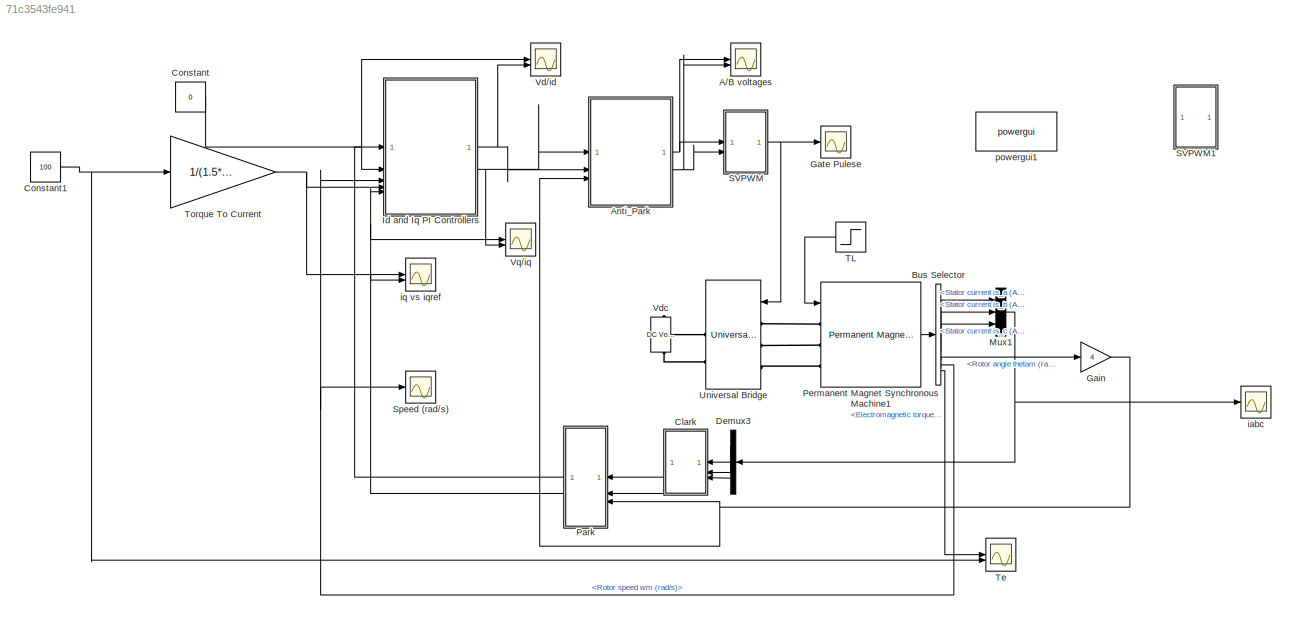
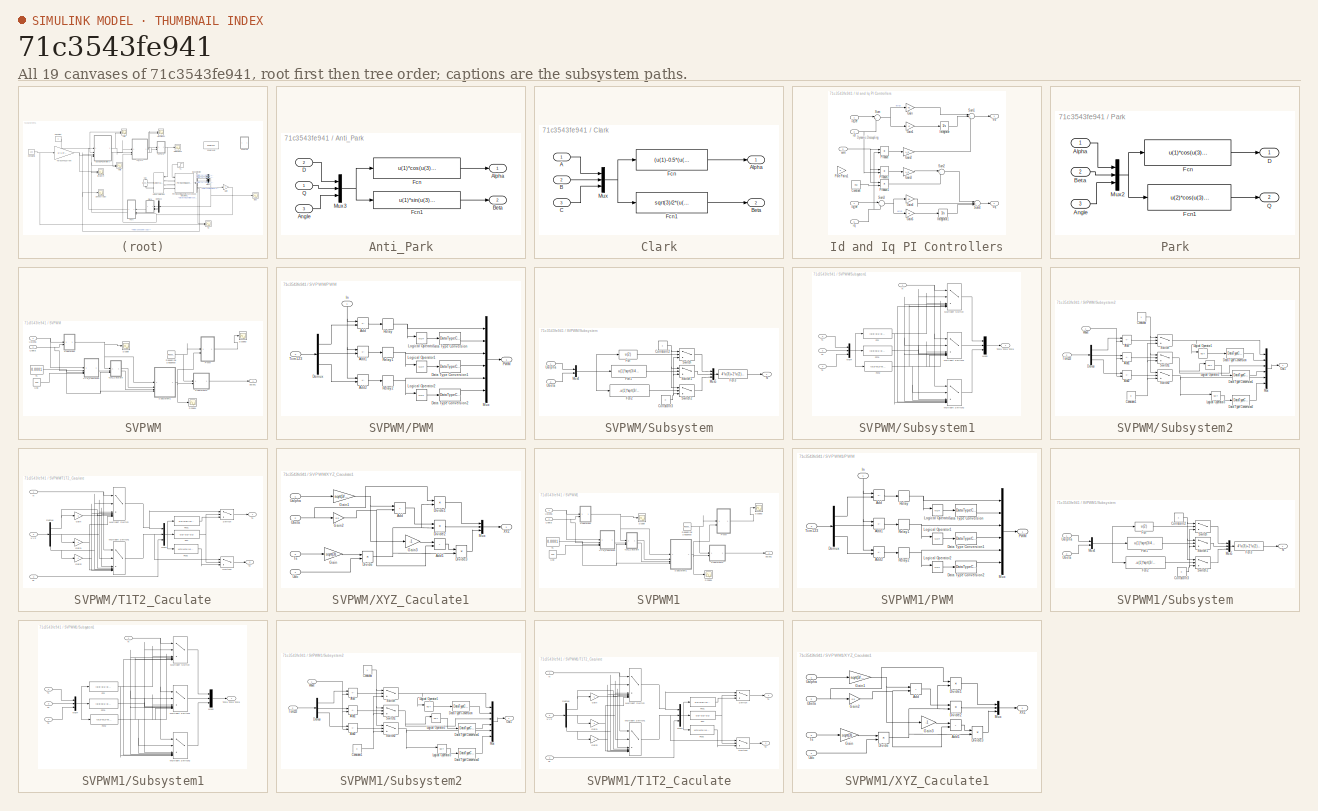
[diagram: thumbnail index - all 19 canvases of the model, root first then tree order]
MODEL slx_71c3543fe941
KIND model
CONFIG AbsTol = auto
CONFIG EnableMultiTasking = on
CONFIG FixedStep = 0.0002
CONFIG InitFcn = Ts = 10e-6;\n\nR = 0.958;\nLd = 5.25e-3;\nLq = 12e-3;\nPn = 4;\nflux = 0.1827;
CONFIG MaxStep = auto
CONFIG MinStep = auto
CONFIG RelTol = 1e-4
CONFIG SampleTimeConstraint = Unconstrained
CONFIG SolverName = FixedStepAuto
CONFIG StartTime = 0.0
CONFIG StopTime = 5
BLOCK [Scope] A//B voltages
  Floating = off
  NumInputPorts = 2
  ScopeSpecificationString = Simulink.scopes.TimeScopeBlockCfg('CurrentConfiguration', extmgr.ConfigurationSet(extmgr.Configuration('Core','General UI',true),extmgr.Configuration('Core','Source UI',true),extmgr.Configuration('Sources','WiredSimulink',true,'DataLoggingVariableName','ScopeData3'),extmgr.Configuration('Visuals','Time Domain',true,'SerializedDisplays',{struct('MinYLimReal','-103.71842','MaxYLimReal','110.31379','...<+1600ch>
BLOCK [SubSystem] Anti_Park
BLOCK [Outport] Anti_Park/Alpha
  VectorParamsAs1DForOutWhenUnconnected = off
BLOCK [Inport] Anti_Park/Angle
  Port = 3
BLOCK [Outport] Anti_Park/Beta
  Port = 2
  VectorParamsAs1DForOutWhenUnconnected = off
BLOCK [Inport] Anti_Park/D
  Port = 2
BLOCK [Fcn] Anti_Park/Fcn
  Expr = u(1)*cos(u(3))-u(2)*sin(u(3))
BLOCK [Fcn] Anti_Park/Fcn1
  Expr = u(1)*sin(u(3))+u(2)*cos(u(3))
BLOCK [Mux] Anti_Park/Mux3
  DisplayOption = bar
  Inputs = 3
BLOCK [Inport] Anti_Park/Q
BLOCK [BusSelector] Bus Selector
  OutputSignals = Stator current is_a (A),Stator current is_b (A),Stator current is_c (A),Rotor speed wm (rad/s),Rotor angle thetam (rad),Electromagnetic torque Te (N*m)
BLOCK [SubSystem] Clark
BLOCK [Inport] Clark/A
BLOCK [Outport] Clark/Alpha
  VectorParamsAs1DForOutWhenUnconnected = off
BLOCK [Inport] Clark/B
  Port = 2
BLOCK [Outport] Clark/Beta
  Port = 2
  VectorParamsAs1DForOutWhenUnconnected = off
BLOCK [Inport] Clark/C
  Port = 3
BLOCK [Fcn] Clark/Fcn
  Expr = (u(1)-0.5*(u(2)+u(3)))*2/3
BLOCK [Fcn] Clark/Fcn1
  Expr = sqrt(3)/2*(u(2)-u(3))*2/3
BLOCK [Mux] Clark/Mux
  DisplayOption = bar
  Inputs = 3
BLOCK [Constant] Constant
  Value = 0
BLOCK [Constant] Constant1
  Value = 100
BLOCK [Demux] Demux3
  NameLocation = top
  Outputs = 3
BLOCK [Gain] Gain
  Gain = 4
BLOCK [Scope] Gate Pulese
  Floating = off
  NumInputPorts = 1
  ScopeSpecificationString = Simulink.scopes.TimeScopeBlockCfg('CurrentConfiguration', extmgr.ConfigurationSet(extmgr.Configuration('Core','General UI',true),extmgr.Configuration('Core','Source UI',true),extmgr.Configuration('Sources','WiredSimulink',true,'DataLoggingVariableName','ScopeData2'),extmgr.Configuration('Visuals','Time Domain',true,'SerializedDisplays',{struct('MinYLimReal','-0.125','MaxYLimReal','1.125','YLabelRe...<+1631ch>
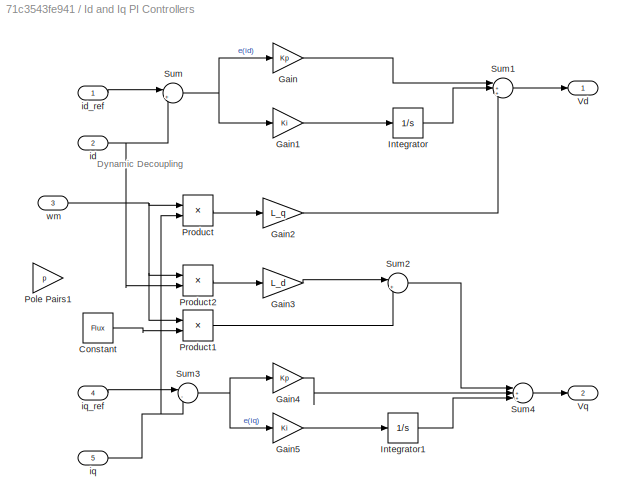
BLOCK [SubSystem] Id and Iq PI Controllers
BLOCK [Constant] Id and Iq PI Controllers/Constant
  Value = Flux
BLOCK [Gain] Id and Iq PI Controllers/Gain
  Gain = Kp
BLOCK [Gain] Id and Iq PI Controllers/Gain1
  Gain = Ki
BLOCK [Gain] Id and Iq PI Controllers/Gain2
  Gain = L_q
BLOCK [Gain] Id and Iq PI Controllers/Gain3
  Gain = L_d
BLOCK [Gain] Id and Iq PI Controllers/Gain4
  Gain = Kp
BLOCK [Gain] Id and Iq PI Controllers/Gain5
  Gain = Ki
BLOCK [Integrator] Id and Iq PI Controllers/Integrator
BLOCK [Integrator] Id and Iq PI Controllers/Integrator1
BLOCK [Gain] Id and Iq PI Controllers/Pole Pairs1
  Gain = p
BLOCK [Product] Id and Iq PI Controllers/Product
BLOCK [Product] Id and Iq PI Controllers/Product1
BLOCK [Product] Id and Iq PI Controllers/Product2
BLOCK [Sum] Id and Iq PI Controllers/Sum
  Inputs = |+-
BLOCK [Sum] Id and Iq PI Controllers/Sum1
  Inputs = |++-
BLOCK [Sum] Id and Iq PI Controllers/Sum2
  Inputs = |++
BLOCK [Sum] Id and Iq PI Controllers/Sum3
  Inputs = |-+
BLOCK [Sum] Id and Iq PI Controllers/Sum4
  Inputs = |+++
BLOCK [Outport] Id and Iq PI Controllers/Vd
BLOCK [Outport] Id and Iq PI Controllers/Vq
  Port = 2
BLOCK [Inport] Id and Iq PI Controllers/id
  Port = 2
BLOCK [Inport] Id and Iq PI Controllers/id_ref
BLOCK [Inport] Id and Iq PI Controllers/iq
  Port = 5
BLOCK [Inport] Id and Iq PI Controllers/iq_ref
  Port = 4
BLOCK [Inport] Id and Iq PI Controllers/wm
  Port = 3
BLOCK [Mux] Mux1
  DisplayOption = bar
  Inputs = 3
BLOCK [SubSystem] Park
BLOCK [Inport] Park/Alpha
BLOCK [Inport] Park/Angle
  Port = 3
BLOCK [Inport] Park/Beta
  Port = 2
BLOCK [Outport] Park/D
  VectorParamsAs1DForOutWhenUnconnected = off
BLOCK [Fcn] Park/Fcn
  Expr = u(1)*cos(u(3))+u(2)*sin(u(3))
BLOCK [Fcn] Park/Fcn1
  Expr = u(2)*cos(u(3))-u(1)*sin(u(3))
BLOCK [Mux] Park/Mux2
  DisplayOption = bar
  Inputs = 3
BLOCK [Outport] Park/Q
  Port = 2
  VectorParamsAs1DForOutWhenUnconnected = off
BLOCK [Reference] Permanent Magnet Synchronous Machine1  REF=spsPermanentMagnetSynchronousMachineLib/Permanent Magnet
Synchronous Machine
  LibrarySourceBlock = sps_lib/Electrical Machines/Permanent Magnet\nSynchronous Machine
  SourceBlock = spsPermanentMagnetSynchronousMachineLib/Permanent Magnet\nSynchronous Machine
  SourceType = Permanent Magnet Synchronous Machine
BLOCK [SubSystem] SVPWM
BLOCK [SubSystem] SVPWM/PWM
BLOCK [Sum] SVPWM/PWM/Add
  IconShape = rectangular
  Inputs = +-
BLOCK [Sum] SVPWM/PWM/Add1
  IconShape = rectangular
  Inputs = +-
BLOCK [Sum] SVPWM/PWM/Add2
  IconShape = rectangular
  Inputs = +-
BLOCK [DataTypeConversion] SVPWM/PWM/Data Type Conversion
  OutDataTypeStr = double
  RndMeth = Floor
  SaturateOnIntegerOverflow = off
BLOCK [DataTypeConversion] SVPWM/PWM/Data Type Conversion1
  OutDataTypeStr = double
  RndMeth = Floor
  SaturateOnIntegerOverflow = off
BLOCK [DataTypeConversion] SVPWM/PWM/Data Type Conversion2
  OutDataTypeStr = double
  RndMeth = Floor
  SaturateOnIntegerOverflow = off
BLOCK [Demux] SVPWM/PWM/Demux
  Outputs = 3
BLOCK [Inport] SVPWM/PWM/In
  NameLocation = right
BLOCK [Logic] SVPWM/PWM/Logical Operator
  AllPortsSameDT = off
  Operator = NOT
  OutDataTypeStr = boolean
BLOCK [Logic] SVPWM/PWM/Logical Operator1
  AllPortsSameDT = off
  Operator = NOT
  OutDataTypeStr = boolean
BLOCK [Logic] SVPWM/PWM/Logical Operator2
  AllPortsSameDT = off
  Operator = NOT
  OutDataTypeStr = boolean
BLOCK [Mux] SVPWM/PWM/Mux
  DisplayOption = bar
  Inputs = 6
BLOCK [Outport] SVPWM/PWM/PWM
  VectorParamsAs1DForOutWhenUnconnected = off
BLOCK [Relay] SVPWM/PWM/Relay
  OffSwitchValue = -eps
BLOCK [Relay] SVPWM/PWM/Relay1
  OffSwitchValue = -eps
BLOCK [Relay] SVPWM/PWM/Relay2
  OffSwitchValue = -eps
BLOCK [Inport] SVPWM/PWM/Tcm123
  Port = 2
BLOCK [Reference] SVPWM/Repeating Sequence  REF=simulink/Sources/Repeating
Sequence
  SourceBlock = simulink/Sources/Repeating\nSequence
  SourceType = Repeating table
BLOCK [Scope] SVPWM/Scope
  Floating = off
  NumInputPorts = 1
  ScopeSpecificationString = Simulink.scopes.TimeScopeBlockCfg('CurrentConfiguration', extmgr.ConfigurationSet(extmgr.Configuration('Core','General UI',true),extmgr.Configuration('Core','Source UI',true),extmgr.Configuration('Sources','WiredSimulink',true,'DataLoggingVariableName','ScopeData2'),extmgr.Configuration('Visuals','Time Domain',true,'SerializedDisplays',{struct('MinYLimReal','0.375','MaxYLimReal','6.625','YLabelRea...<+1472ch>
BLOCK [Scope] SVPWM/Scope1
  Floating = off
  NumInputPorts = 1
  ScopeSpecificationString = Simulink.scopes.TimeScopeBlockCfg('CurrentConfiguration', extmgr.ConfigurationSet(extmgr.Configuration('Core','General UI',true),extmgr.Configuration('Core','Source UI',true),extmgr.Configuration('Sources','WiredSimulink',true,'DataLoggingVariableName','ScopeData4'),extmgr.Configuration('Visuals','Time Domain',true,'SerializedDisplays',{struct('MinYLimReal','-0.000006','MaxYLimReal','0.000056','YL...<+1498ch>
BLOCK [Scope] SVPWM/Scope3
  Floating = off
  NumInputPorts = 1
  ScopeSpecificationString = Simulink.scopes.TimeScopeBlockCfg('CurrentConfiguration', extmgr.ConfigurationSet(extmgr.Configuration('Core','General UI',true),extmgr.Configuration('Core','Source UI',true),extmgr.Configuration('Sources','WiredSimulink',true,'DataLoggingVariableName','ScopeData6'),extmgr.Configuration('Visuals','Time Domain',true,'SerializedDisplays',{struct('MinYLimReal','-0.125','MaxYLimReal','1.125','YLabelRe...<+1550ch>
BLOCK [SubSystem] SVPWM/Subsystem
BLOCK [Constant] SVPWM/Subsystem/Constant2
BLOCK [Constant] SVPWM/Subsystem/Constant3
  Value = 0
BLOCK [Fcn] SVPWM/Subsystem/Fcn
  Expr = u(2)
BLOCK [Fcn] SVPWM/Subsystem/Fcn1
  Expr = u(1)*sqrt(3/4)-0.5*u(2)
BLOCK [Fcn] SVPWM/Subsystem/Fcn2
  Expr = -u(1)*sqrt(3/4)-u(2)*0.5
BLOCK [Fcn] SVPWM/Subsystem/Fcn3
  Expr = 4*u(3)+2*u(2)+u(1)
BLOCK [Mux] SVPWM/Subsystem/Mux4
  DisplayOption = bar
  Inputs = 2
BLOCK [Mux] SVPWM/Subsystem/Mux5
  DisplayOption = bar
  Inputs = 3
BLOCK [Outport] SVPWM/Subsystem/N
  VectorParamsAs1DForOutWhenUnconnected = off
BLOCK [Switch] SVPWM/Subsystem/Switch
  Criteria = u2 > Threshold
  InputSameDT = off
  SaturateOnIntegerOverflow = off
BLOCK [Switch] SVPWM/Subsystem/Switch1
  Criteria = u2 > Threshold
  InputSameDT = off
  SaturateOnIntegerOverflow = off
BLOCK [Switch] SVPWM/Subsystem/Switch2
  Criteria = u2 > Threshold
  InputSameDT = off
  SaturateOnIntegerOverflow = off
BLOCK [Inport] SVPWM/Subsystem/Ualpha
BLOCK [Inport] SVPWM/Subsystem/Ubeta
  Port = 2
BLOCK [SubSystem] SVPWM/Subsystem1
BLOCK [Fcn] SVPWM/Subsystem1/Fcn
  Expr = (u(3)-u(1)-u(2))/4
BLOCK [Fcn] SVPWM/Subsystem1/Fcn1
  Expr = (u(3)+u(1)-u(2))/4
BLOCK [Fcn] SVPWM/Subsystem1/Fcn2
  Expr = (u(3)+u(2)+u(1))/4
BLOCK [MultiPortSwitch] SVPWM/Subsystem1/Multiport Switch
  InputSameDT = off
  Inputs = 6
  SaturateOnIntegerOverflow = off
BLOCK [MultiPortSwitch] SVPWM/Subsystem1/Multiport Switch1
  InputSameDT = off
  Inputs = 6
  SaturateOnIntegerOverflow = off
BLOCK [MultiPortSwitch] SVPWM/Subsystem1/Multiport Switch2
  InputSameDT = off
  Inputs = 6
  SaturateOnIntegerOverflow = off
BLOCK [Mux] SVPWM/Subsystem1/Mux4
  DisplayOption = bar
  Inputs = 3
BLOCK [Mux] SVPWM/Subsystem1/Mux5
  DisplayOption = bar
  Inputs = 3
BLOCK [Inport] SVPWM/Subsystem1/N
BLOCK [Inport] SVPWM/Subsystem1/T1
  Port = 2
BLOCK [Inport] SVPWM/Subsystem1/T2
  Port = 3
BLOCK [Outport] SVPWM/Subsystem1/Tcm1 Tcm2 Tcm3
  VectorParamsAs1DForOutWhenUnconnected = off
BLOCK [Inport] SVPWM/Subsystem1/Ts
  Port = 4
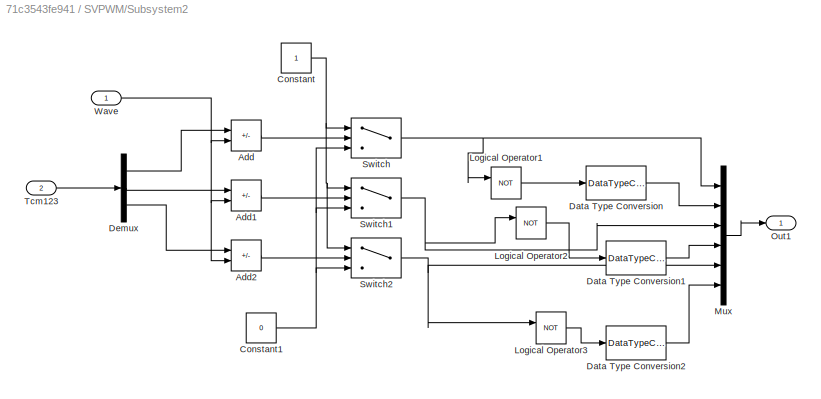
BLOCK [SubSystem] SVPWM/Subsystem2
BLOCK [Sum] SVPWM/Subsystem2/Add
  IconShape = rectangular
  Inputs = -+
BLOCK [Sum] SVPWM/Subsystem2/Add1
  IconShape = rectangular
  Inputs = -+
BLOCK [Sum] SVPWM/Subsystem2/Add2
  IconShape = rectangular
  Inputs = -+
BLOCK [Constant] SVPWM/Subsystem2/Constant
BLOCK [Constant] SVPWM/Subsystem2/Constant1
  Value = 0
BLOCK [DataTypeConversion] SVPWM/Subsystem2/Data Type Conversion
  OutDataTypeStr = double
  RndMeth = Floor
  SaturateOnIntegerOverflow = off
BLOCK [DataTypeConversion] SVPWM/Subsystem2/Data Type Conversion1
  OutDataTypeStr = double
  RndMeth = Floor
  SaturateOnIntegerOverflow = off
BLOCK [DataTypeConversion] SVPWM/Subsystem2/Data Type Conversion2
  OutDataTypeStr = double
  RndMeth = Floor
  SaturateOnIntegerOverflow = off
BLOCK [Demux] SVPWM/Subsystem2/Demux
  Outputs = 3
BLOCK [Logic] SVPWM/Subsystem2/Logical Operator1
  AllPortsSameDT = off
  Operator = NOT
  OutDataTypeStr = boolean
BLOCK [Logic] SVPWM/Subsystem2/Logical Operator2
  AllPortsSameDT = off
  Operator = NOT
  OutDataTypeStr = boolean
BLOCK [Logic] SVPWM/Subsystem2/Logical Operator3
  AllPortsSameDT = off
  Operator = NOT
  OutDataTypeStr = boolean
BLOCK [Mux] SVPWM/Subsystem2/Mux
  DisplayOption = bar
  Inputs = 6
BLOCK [Outport] SVPWM/Subsystem2/Out1
  VectorParamsAs1DForOutWhenUnconnected = off
BLOCK [Switch] SVPWM/Subsystem2/Switch
  Criteria = u2 > Threshold
  InputSameDT = off
  SaturateOnIntegerOverflow = off
BLOCK [Switch] SVPWM/Subsystem2/Switch1
  Criteria = u2 > Threshold
  InputSameDT = off
  SaturateOnIntegerOverflow = off
BLOCK [Switch] SVPWM/Subsystem2/Switch2
  Criteria = u2 > Threshold
  InputSameDT = off
  SaturateOnIntegerOverflow = off
BLOCK [Inport] SVPWM/Subsystem2/Tcm123
  Port = 2
BLOCK [Inport] SVPWM/Subsystem2/Wave
BLOCK [SubSystem] SVPWM/T1T2_Caculate
BLOCK [Demux] SVPWM/T1T2_Caculate/Demux
  Outputs = 3
BLOCK [Fcn] SVPWM/T1T2_Caculate/Fcn
  Expr = u(3)-u(2)-u(1)
BLOCK [Fcn] SVPWM/T1T2_Caculate/Fcn1
  Expr = u(1)*u(3)/(u(1)+u(2))
BLOCK [Fcn] SVPWM/T1T2_Caculate/Fcn2
  Expr = u(2)*u(3)/(u(1)+u(2))
BLOCK [Gain] SVPWM/T1T2_Caculate/Gain
  Gain = -1
BLOCK [Gain] SVPWM/T1T2_Caculate/Gain1
  Gain = -1
BLOCK [Gain] SVPWM/T1T2_Caculate/Gain2
  Gain = -1
BLOCK [MultiPortSwitch] SVPWM/T1T2_Caculate/Multiport Switch
  InputSameDT = off
  Inputs = 6
  SaturateOnIntegerOverflow = off
BLOCK [MultiPortSwitch] SVPWM/T1T2_Caculate/Multiport Switch1
  InputSameDT = off
  Inputs = 6
  SaturateOnIntegerOverflow = off
BLOCK [Mux] SVPWM/T1T2_Caculate/Mux4
  DisplayOption = bar
  Inputs = 3
BLOCK [Inport] SVPWM/T1T2_Caculate/N
BLOCK [Switch] SVPWM/T1T2_Caculate/Switch
  Criteria = u2 > Threshold
  InputSameDT = off
  SaturateOnIntegerOverflow = off
BLOCK [Switch] SVPWM/T1T2_Caculate/Switch1
  Criteria = u2 > Threshold
  InputSameDT = off
  SaturateOnIntegerOverflow = off
BLOCK [Outport] SVPWM/T1T2_Caculate/T1
  VectorParamsAs1DForOutWhenUnconnected = off
BLOCK [Outport] SVPWM/T1T2_Caculate/T2
  Port = 2
  VectorParamsAs1DForOutWhenUnconnected = off
BLOCK [Inport] SVPWM/T1T2_Caculate/Ts
  Port = 3
BLOCK [Inport] SVPWM/T1T2_Caculate/XYZ
  Port = 2
BLOCK [Constant] SVPWM/Ts
  Value = 0.0001
BLOCK [Inport] SVPWM/Ualpha
BLOCK [Inport] SVPWM/Ubeta
  Port = 2
BLOCK [Constant] SVPWM/Udc
  Value = 600
BLOCK [SubSystem] SVPWM/XYZ_Caculate1
BLOCK [Sum] SVPWM/XYZ_Caculate1/Add
  IconShape = rectangular
BLOCK [Sum] SVPWM/XYZ_Caculate1/Add1
  IconShape = rectangular
BLOCK [Product] SVPWM/XYZ_Caculate1/Divide
  Inputs = */
BLOCK [Product] SVPWM/XYZ_Caculate1/Divide1
  Inputs = **
BLOCK [Product] SVPWM/XYZ_Caculate1/Divide2
  Inputs = **
BLOCK [Product] SVPWM/XYZ_Caculate1/Divide3
  Inputs = **
BLOCK [Gain] SVPWM/XYZ_Caculate1/Gain
  Gain = sqrt(3)
BLOCK [Gain] SVPWM/XYZ_Caculate1/Gain1
  Gain = sqrt(3/4)
BLOCK [Gain] SVPWM/XYZ_Caculate1/Gain2
  Gain = 0.5
BLOCK [Gain] SVPWM/XYZ_Caculate1/Gain3
  Gain = -1
BLOCK [Mux] SVPWM/XYZ_Caculate1/Mux
  DisplayOption = bar
  Inputs = 3
BLOCK [Inport] SVPWM/XYZ_Caculate1/Ts
  Port = 3
BLOCK [Inport] SVPWM/XYZ_Caculate1/Ualpha
BLOCK [Inport] SVPWM/XYZ_Caculate1/Ubeta
  Port = 2
BLOCK [Inport] SVPWM/XYZ_Caculate1/Udc
  Port = 4
BLOCK [Outport] SVPWM/XYZ_Caculate1/XYZ 
  VectorParamsAs1DForOutWhenUnconnected = off
BLOCK [Outport] SVPWM/pulse1
  VectorParamsAs1DForOutWhenUnconnected = off
BLOCK [SubSystem] SVPWM1
  Commented = on
BLOCK [SubSystem] SVPWM1/PWM
BLOCK [Sum] SVPWM1/PWM/Add
  IconShape = rectangular
  Inputs = +-
BLOCK [Sum] SVPWM1/PWM/Add1
  IconShape = rectangular
  Inputs = +-
BLOCK [Sum] SVPWM1/PWM/Add2
  IconShape = rectangular
  Inputs = +-
BLOCK [DataTypeConversion] SVPWM1/PWM/Data Type Conversion
  OutDataTypeStr = double
  RndMeth = Floor
  SaturateOnIntegerOverflow = off
BLOCK [DataTypeConversion] SVPWM1/PWM/Data Type Conversion1
  OutDataTypeStr = double
  RndMeth = Floor
  SaturateOnIntegerOverflow = off
BLOCK [DataTypeConversion] SVPWM1/PWM/Data Type Conversion2
  OutDataTypeStr = double
  RndMeth = Floor
  SaturateOnIntegerOverflow = off
BLOCK [Demux] SVPWM1/PWM/Demux
  Outputs = 3
BLOCK [Inport] SVPWM1/PWM/In
  NameLocation = right
BLOCK [Logic] SVPWM1/PWM/Logical Operator
  AllPortsSameDT = off
  Operator = NOT
  OutDataTypeStr = boolean
BLOCK [Logic] SVPWM1/PWM/Logical Operator1
  AllPortsSameDT = off
  Operator = NOT
  OutDataTypeStr = boolean
BLOCK [Logic] SVPWM1/PWM/Logical Operator2
  AllPortsSameDT = off
  Operator = NOT
  OutDataTypeStr = boolean
BLOCK [Mux] SVPWM1/PWM/Mux
  DisplayOption = bar
  Inputs = 6
BLOCK [Outport] SVPWM1/PWM/PWM
  VectorParamsAs1DForOutWhenUnconnected = off
BLOCK [Relay] SVPWM1/PWM/Relay
  OffSwitchValue = -eps
BLOCK [Relay] SVPWM1/PWM/Relay1
  OffSwitchValue = -eps
BLOCK [Relay] SVPWM1/PWM/Relay2
  OffSwitchValue = -eps
BLOCK [Inport] SVPWM1/PWM/Tcm123
  Port = 2
BLOCK [Reference] SVPWM1/Repeating Sequence  REF=simulink/Sources/Repeating
Sequence
  SourceBlock = simulink/Sources/Repeating\nSequence
  SourceType = Repeating table
BLOCK [Scope] SVPWM1/Scope
  Floating = off
  NumInputPorts = 1
  ScopeSpecificationString = Simulink.scopes.TimeScopeBlockCfg('CurrentConfiguration', extmgr.ConfigurationSet(extmgr.Configuration('Core','General UI',true),extmgr.Configuration('Core','Source UI',true),extmgr.Configuration('Sources','WiredSimulink',true,'DataLoggingVariableName','ScopeData2'),extmgr.Configuration('Visuals','Time Domain',true,'SerializedDisplays',{struct('MinYLimReal','0.375','MaxYLimReal','6.625','YLabelRea...<+1472ch>
BLOCK [Scope] SVPWM1/Scope1
  Floating = off
  NumInputPorts = 1
  ScopeSpecificationString = Simulink.scopes.TimeScopeBlockCfg('CurrentConfiguration', extmgr.ConfigurationSet(extmgr.Configuration('Core','General UI',true),extmgr.Configuration('Core','Source UI',true),extmgr.Configuration('Sources','WiredSimulink',true,'DataLoggingVariableName','ScopeData4'),extmgr.Configuration('Visuals','Time Domain',true,'SerializedDisplays',{struct('MinYLimReal','-0.000006','MaxYLimReal','0.000056','YL...<+1498ch>
BLOCK [Scope] SVPWM1/Scope3
  Floating = off
  NumInputPorts = 1
  ScopeSpecificationString = Simulink.scopes.TimeScopeBlockCfg('CurrentConfiguration', extmgr.ConfigurationSet(extmgr.Configuration('Core','General UI',true),extmgr.Configuration('Core','Source UI',true),extmgr.Configuration('Sources','WiredSimulink',true,'DataLoggingVariableName','ScopeData6'),extmgr.Configuration('Visuals','Time Domain',true,'SerializedDisplays',{struct('MinYLimReal','-0.125','MaxYLimReal','1.125','YLabelRe...<+1550ch>
BLOCK [SubSystem] SVPWM1/Subsystem
BLOCK [Constant] SVPWM1/Subsystem/Constant2
BLOCK [Constant] SVPWM1/Subsystem/Constant3
  Value = 0
BLOCK [Fcn] SVPWM1/Subsystem/Fcn
  Expr = u(2)
BLOCK [Fcn] SVPWM1/Subsystem/Fcn1
  Expr = u(1)*sqrt(3/4)-0.5*u(2)
BLOCK [Fcn] SVPWM1/Subsystem/Fcn2
  Expr = -u(1)*sqrt(3/4)-u(2)*0.5
BLOCK [Fcn] SVPWM1/Subsystem/Fcn3
  Expr = 4*u(3)+2*u(2)+u(1)
BLOCK [Mux] SVPWM1/Subsystem/Mux4
  DisplayOption = bar
  Inputs = 2
BLOCK [Mux] SVPWM1/Subsystem/Mux5
  DisplayOption = bar
  Inputs = 3
BLOCK [Outport] SVPWM1/Subsystem/N
  VectorParamsAs1DForOutWhenUnconnected = off
BLOCK [Switch] SVPWM1/Subsystem/Switch
  Criteria = u2 > Threshold
  InputSameDT = off
  SaturateOnIntegerOverflow = off
BLOCK [Switch] SVPWM1/Subsystem/Switch1
  Criteria = u2 > Threshold
  InputSameDT = off
  SaturateOnIntegerOverflow = off
BLOCK [Switch] SVPWM1/Subsystem/Switch2
  Criteria = u2 > Threshold
  InputSameDT = off
  SaturateOnIntegerOverflow = off
BLOCK [Inport] SVPWM1/Subsystem/Ualpha
BLOCK [Inport] SVPWM1/Subsystem/Ubeta
  Port = 2
BLOCK [SubSystem] SVPWM1/Subsystem1
BLOCK [Fcn] SVPWM1/Subsystem1/Fcn
  Expr = (u(3)-u(1)-u(2))/4
BLOCK [Fcn] SVPWM1/Subsystem1/Fcn1
  Expr = (u(3)+u(1)-u(2))/4
BLOCK [Fcn] SVPWM1/Subsystem1/Fcn2
  Expr = (u(3)+u(2)+u(1))/4
BLOCK [MultiPortSwitch] SVPWM1/Subsystem1/Multiport Switch
  InputSameDT = off
  Inputs = 6
  SaturateOnIntegerOverflow = off
BLOCK [MultiPortSwitch] SVPWM1/Subsystem1/Multiport Switch1
  InputSameDT = off
  Inputs = 6
  SaturateOnIntegerOverflow = off
BLOCK [MultiPortSwitch] SVPWM1/Subsystem1/Multiport Switch2
  InputSameDT = off
  Inputs = 6
  SaturateOnIntegerOverflow = off
BLOCK [Mux] SVPWM1/Subsystem1/Mux4
  DisplayOption = bar
  Inputs = 3
BLOCK [Mux] SVPWM1/Subsystem1/Mux5
  DisplayOption = bar
  Inputs = 3
BLOCK [Inport] SVPWM1/Subsystem1/N
BLOCK [Inport] SVPWM1/Subsystem1/T1
  Port = 2
BLOCK [Inport] SVPWM1/Subsystem1/T2
  Port = 3
BLOCK [Outport] SVPWM1/Subsystem1/Tcm1 Tcm2 Tcm3
  VectorParamsAs1DForOutWhenUnconnected = off
BLOCK [Inport] SVPWM1/Subsystem1/Ts
  Port = 4
BLOCK [SubSystem] SVPWM1/Subsystem2
BLOCK [Sum] SVPWM1/Subsystem2/Add
  IconShape = rectangular
  Inputs = -+
BLOCK [Sum] SVPWM1/Subsystem2/Add1
  IconShape = rectangular
  Inputs = -+
BLOCK [Sum] SVPWM1/Subsystem2/Add2
  IconShape = rectangular
  Inputs = -+
BLOCK [Constant] SVPWM1/Subsystem2/Constant
BLOCK [Constant] SVPWM1/Subsystem2/Constant1
  Value = 0
BLOCK [DataTypeConversion] SVPWM1/Subsystem2/Data Type Conversion
  OutDataTypeStr = double
  RndMeth = Floor
  SaturateOnIntegerOverflow = off
BLOCK [DataTypeConversion] SVPWM1/Subsystem2/Data Type Conversion1
  OutDataTypeStr = double
  RndMeth = Floor
  SaturateOnIntegerOverflow = off
BLOCK [DataTypeConversion] SVPWM1/Subsystem2/Data Type Conversion2
  OutDataTypeStr = double
  RndMeth = Floor
  SaturateOnIntegerOverflow = off
BLOCK [Demux] SVPWM1/Subsystem2/Demux
  Outputs = 3
BLOCK [Logic] SVPWM1/Subsystem2/Logical Operator1
  AllPortsSameDT = off
  Operator = NOT
  OutDataTypeStr = boolean
BLOCK [Logic] SVPWM1/Subsystem2/Logical Operator2
  AllPortsSameDT = off
  Operator = NOT
  OutDataTypeStr = boolean
BLOCK [Logic] SVPWM1/Subsystem2/Logical Operator3
  AllPortsSameDT = off
  Operator = NOT
  OutDataTypeStr = boolean
BLOCK [Mux] SVPWM1/Subsystem2/Mux
  DisplayOption = bar
  Inputs = 6
BLOCK [Outport] SVPWM1/Subsystem2/Out1
  VectorParamsAs1DForOutWhenUnconnected = off
BLOCK [Switch] SVPWM1/Subsystem2/Switch
  Criteria = u2 > Threshold
  InputSameDT = off
  SaturateOnIntegerOverflow = off
BLOCK [Switch] SVPWM1/Subsystem2/Switch1
  Criteria = u2 > Threshold
  InputSameDT = off
  SaturateOnIntegerOverflow = off
BLOCK [Switch] SVPWM1/Subsystem2/Switch2
  Criteria = u2 > Threshold
  InputSameDT = off
  SaturateOnIntegerOverflow = off
BLOCK [Inport] SVPWM1/Subsystem2/Tcm123
  Port = 2
BLOCK [Inport] SVPWM1/Subsystem2/Wave
BLOCK [SubSystem] SVPWM1/T1T2_Caculate
BLOCK [Demux] SVPWM1/T1T2_Caculate/Demux
  Outputs = 3
BLOCK [Fcn] SVPWM1/T1T2_Caculate/Fcn
  Expr = u(3)-u(2)-u(1)
BLOCK [Fcn] SVPWM1/T1T2_Caculate/Fcn1
  Expr = u(1)*u(3)/(u(1)+u(2))
BLOCK [Fcn] SVPWM1/T1T2_Caculate/Fcn2
  Expr = u(2)*u(3)/(u(1)+u(2))
BLOCK [Gain] SVPWM1/T1T2_Caculate/Gain
  Gain = -1
BLOCK [Gain] SVPWM1/T1T2_Caculate/Gain1
  Gain = -1
BLOCK [Gain] SVPWM1/T1T2_Caculate/Gain2
  Gain = -1
BLOCK [MultiPortSwitch] SVPWM1/T1T2_Caculate/Multiport Switch
  InputSameDT = off
  Inputs = 6
  SaturateOnIntegerOverflow = off
BLOCK [MultiPortSwitch] SVPWM1/T1T2_Caculate/Multiport Switch1
  InputSameDT = off
  Inputs = 6
  SaturateOnIntegerOverflow = off
BLOCK [Mux] SVPWM1/T1T2_Caculate/Mux4
  DisplayOption = bar
  Inputs = 3
BLOCK [Inport] SVPWM1/T1T2_Caculate/N
BLOCK [Switch] SVPWM1/T1T2_Caculate/Switch
  Criteria = u2 > Threshold
  InputSameDT = off
  SaturateOnIntegerOverflow = off
BLOCK [Switch] SVPWM1/T1T2_Caculate/Switch1
  Criteria = u2 > Threshold
  InputSameDT = off
  SaturateOnIntegerOverflow = off
BLOCK [Outport] SVPWM1/T1T2_Caculate/T1
  VectorParamsAs1DForOutWhenUnconnected = off
BLOCK [Outport] SVPWM1/T1T2_Caculate/T2
  Port = 2
  VectorParamsAs1DForOutWhenUnconnected = off
BLOCK [Inport] SVPWM1/T1T2_Caculate/Ts
  Port = 3
BLOCK [Inport] SVPWM1/T1T2_Caculate/XYZ
  Port = 2
BLOCK [Constant] SVPWM1/Ts
  Value = 0.0001
BLOCK [Inport] SVPWM1/Ualpha
BLOCK [Inport] SVPWM1/Ubeta
  Port = 2
BLOCK [Constant] SVPWM1/Udc
  Value = 600
BLOCK [SubSystem] SVPWM1/XYZ_Caculate1
BLOCK [Sum] SVPWM1/XYZ_Caculate1/Add
  IconShape = rectangular
BLOCK [Sum] SVPWM1/XYZ_Caculate1/Add1
  IconShape = rectangular
BLOCK [Product] SVPWM1/XYZ_Caculate1/Divide
  Inputs = */
BLOCK [Product] SVPWM1/XYZ_Caculate1/Divide1
  Inputs = **
BLOCK [Product] SVPWM1/XYZ_Caculate1/Divide2
  Inputs = **
BLOCK [Product] SVPWM1/XYZ_Caculate1/Divide3
  Inputs = **
BLOCK [Gain] SVPWM1/XYZ_Caculate1/Gain
  Gain = sqrt(3)
BLOCK [Gain] SVPWM1/XYZ_Caculate1/Gain1
  Gain = sqrt(3/4)
BLOCK [Gain] SVPWM1/XYZ_Caculate1/Gain2
  Gain = 0.5
BLOCK [Gain] SVPWM1/XYZ_Caculate1/Gain3
  Gain = -1
BLOCK [Mux] SVPWM1/XYZ_Caculate1/Mux
  DisplayOption = bar
  Inputs = 3
BLOCK [Inport] SVPWM1/XYZ_Caculate1/Ts
  Port = 3
BLOCK [Inport] SVPWM1/XYZ_Caculate1/Ualpha
BLOCK [Inport] SVPWM1/XYZ_Caculate1/Ubeta
  Port = 2
BLOCK [Inport] SVPWM1/XYZ_Caculate1/Udc
  Port = 4
BLOCK [Outport] SVPWM1/XYZ_Caculate1/XYZ 
  VectorParamsAs1DForOutWhenUnconnected = off
BLOCK [Outport] SVPWM1/pulse1
  VectorParamsAs1DForOutWhenUnconnected = off
BLOCK [Scope] Speed (rad//s)
  Floating = off
  NumInputPorts = 1
  ScopeSpecificationString = Simulink.scopes.TimeScopeBlockCfg('CurrentConfiguration', extmgr.ConfigurationSet(extmgr.Configuration('Core','General UI',true),extmgr.Configuration('Core','Source UI',true),extmgr.Configuration('Sources','WiredSimulink',true,'DataLoggingVariableName','ScopeData1'),extmgr.Configuration('Visuals','Time Domain',true,'SerializedDisplays',{struct('MinYLimReal','-125.00000','MaxYLimReal','1125.00000',...<+1618ch>
BLOCK [Step] TL
  After = 10
  SampleTime = 0
BLOCK [Scope] Te
  Floating = off
  NameLocation = top
  NumInputPorts = 2
  ScopeSpecificationString = Simulink.scopes.TimeScopeBlockCfg('CurrentConfiguration', extmgr.ConfigurationSet(extmgr.Configuration('Core','General UI',true),extmgr.Configuration('Core','Source UI',true),extmgr.Configuration('Sources','WiredSimulink',true,'DataLogging',true,'DataLoggingVariableName','Te','DataLoggingSaveFormat','StructureWithTime','DataLoggingDecimation','1','DataLoggingDecimateData',true),extmgr.Configuratio...<+1933ch>
BLOCK [Gain] Torque To Current
  Gain = 1/(1.5*p*Flux)
BLOCK [Reference] Universal Bridge  REF=spsUniversalBridgeLib/Universal Bridge
  LibrarySourceBlock = sps_lib/Power Electronics/Universal Bridge
  SourceBlock = spsUniversalBridgeLib/Universal Bridge
  SourceType = Universal Bridge
BLOCK [Scope] Vd//id
  Floating = off
  NumInputPorts = 2
  ScopeSpecificationString = Simulink.scopes.TimeScopeBlockCfg('CurrentConfiguration', extmgr.ConfigurationSet(extmgr.Configuration('Core','General UI',true),extmgr.Configuration('Core','Source UI',true),extmgr.Configuration('Sources','WiredSimulink',true,'DataLoggingVariableName','ScopeData1'),extmgr.Configuration('Visuals','Time Domain',true,'SerializedDisplays',{struct('MinYLimReal','-1034.66885','MaxYLimReal','1393.37608'...<+1547ch>
BLOCK [Reference] Vdc  REF=spsDCVoltageSourceLib/DC Voltage Source
  LibrarySourceBlock = sps_lib/Sources/DC Voltage Source
  NameLocation = right
  SourceBlock = spsDCVoltageSourceLib/DC Voltage Source
  SourceType = DC Voltage Source
BLOCK [Scope] Vq//iq
  Floating = off
  NumInputPorts = 2
  ScopeSpecificationString = Simulink.scopes.TimeScopeBlockCfg('CurrentConfiguration', extmgr.ConfigurationSet(extmgr.Configuration('Core','General UI',true),extmgr.Configuration('Core','Source UI',true),extmgr.Configuration('Sources','WiredSimulink',true,'DataLoggingVariableName','ScopeData2'),extmgr.Configuration('Visuals','Time Domain',true,'SerializedDisplays',{struct('MinYLimReal','-1337.30962','MaxYLimReal','522.46084',...<+1558ch>
BLOCK [Scope] iabc
  Floating = off
  NumInputPorts = 1
  ScopeSpecificationString = Simulink.scopes.TimeScopeBlockCfg('CurrentConfiguration', extmgr.ConfigurationSet(extmgr.Configuration('Core','General UI',true),extmgr.Configuration('Core','Source UI',true),extmgr.Configuration('Sources','WiredSimulink',true,'DataLogging',true,'DataLoggingVariableName','Iabc','DataLoggingSaveFormat','StructureWithTime','DataLoggingDecimation','1','DataLoggingDecimateData',true),extmgr.Configurat...<+2341ch>
BLOCK [Scope] iq vs iqref
  Floating = off
  NumInputPorts = 2
  ScopeSpecificationString = Simulink.scopes.TimeScopeBlockCfg('CurrentConfiguration', extmgr.ConfigurationSet(extmgr.Configuration('Core','General UI',true),extmgr.Configuration('Core','Source UI',true),extmgr.Configuration('Sources','WiredSimulink',true,'DataLoggingVariableName','ScopeData1'),extmgr.Configuration('Visuals','Time Domain',true,'SerializedDisplays',{struct('MinYLimReal','-150.57004','MaxYLimReal','180.37879','...<+1582ch>
BLOCK [Reference] powergui1  REF=sps_lib/powergui
  LibrarySourceBlock = sps_lib/powergui
  Priority = 1
  SourceBlock = sps_lib/powergui
  SourceType = PSB option menu block
ANNOTATION Id and Iq PI Controllers: Dynamic Decoupling
LINE Anti_Park/Angle:1 -> Anti_Park/Mux3:3
LINE Anti_Park/D:1 -> Anti_Park/Mux3:1
LINE Anti_Park/Fcn1:1 -> Anti_Park/Beta:1
LINE Anti_Park/Fcn:1 -> Anti_Park/Alpha:1
NET Anti_Park/Mux3:1 -> Anti_Park/Fcn1:1, Anti_Park/Fcn:1
LINE Anti_Park/Q:1 -> Anti_Park/Mux3:2
NET Anti_Park:1 -> A//B voltages:1, SVPWM:1
NET Anti_Park:2 -> A//B voltages:2, SVPWM:2
LINE Bus Selector:1 -> Mux1:1
LINE Bus Selector:2 -> Mux1:2
LINE Bus Selector:3 -> Mux1:3
NET Bus Selector:4 -> Id and Iq PI Controllers:3, Speed (rad//s):1
LINE Bus Selector:5 -> Gain:1
LINE Bus Selector:6 -> Te:1
LINE Clark/A:1 -> Clark/Mux:1
LINE Clark/B:1 -> Clark/Mux:2
LINE Clark/C:1 -> Clark/Mux:3
LINE Clark/Fcn1:1 -> Clark/Beta:1
LINE Clark/Fcn:1 -> Clark/Alpha:1
NET Clark/Mux:1 -> Clark/Fcn1:1, Clark/Fcn:1
LINE Clark:1 -> Park:1
LINE Clark:2 -> Park:2
NET Constant1:1 -> Te:2, Torque To Current:1
LINE Constant:1 -> Id and Iq PI Controllers:1
LINE Demux3:1 -> Clark:1
LINE Demux3:2 -> Clark:2
LINE Demux3:3 -> Clark:3
NET Gain:1 -> Anti_Park:3, Park:3
LINE Id and Iq PI Controllers/Constant:1 -> Id and Iq PI Controllers/Product1:2
LINE Id and Iq PI Controllers/Gain1:1 -> Id and Iq PI Controllers/Integrator:1
LINE Id and Iq PI Controllers/Gain2:1 -> Id and Iq PI Controllers/Sum1:3
LINE Id and Iq PI Controllers/Gain3:1 -> Id and Iq PI Controllers/Sum2:1
LINE Id and Iq PI Controllers/Gain4:1 -> Id and Iq PI Controllers/Sum4:2
LINE Id and Iq PI Controllers/Gain5:1 -> Id and Iq PI Controllers/Integrator1:1
LINE Id and Iq PI Controllers/Gain:1 -> Id and Iq PI Controllers/Sum1:1
LINE Id and Iq PI Controllers/Integrator1:1 -> Id and Iq PI Controllers/Sum4:3
LINE Id and Iq PI Controllers/Integrator:1 -> Id and Iq PI Controllers/Sum1:2
LINE Id and Iq PI Controllers/Product1:1 -> Id and Iq PI Controllers/Sum2:2
LINE Id and Iq PI Controllers/Product2:1 -> Id and Iq PI Controllers/Gain3:1
LINE Id and Iq PI Controllers/Product:1 -> Id and Iq PI Controllers/Gain2:1
LINE Id and Iq PI Controllers/Sum1:1 -> Id and Iq PI Controllers/Vd:1
LINE Id and Iq PI Controllers/Sum2:1 -> Id and Iq PI Controllers/Sum4:1
NET Id and Iq PI Controllers/Sum3:1 -> Id and Iq PI Controllers/Gain4:1, Id and Iq PI Controllers/Gain5:1
LINE Id and Iq PI Controllers/Sum4:1 -> Id and Iq PI Controllers/Vq:1
NET Id and Iq PI Controllers/Sum:1 -> Id and Iq PI Controllers/Gain1:1, Id and Iq PI Controllers/Gain:1
NET Id and Iq PI Controllers/id:1 -> Id and Iq PI Controllers/Product2:2, Id and Iq PI Controllers/Sum:2
LINE Id and Iq PI Controllers/id_ref:1 -> Id and Iq PI Controllers/Sum:1
NET Id and Iq PI Controllers/iq:1 -> Id and Iq PI Controllers/Product:2, Id and Iq PI Controllers/Sum3:2
LINE Id and Iq PI Controllers/iq_ref:1 -> Id and Iq PI Controllers/Sum3:1
NET Id and Iq PI Controllers/wm:1 -> Id and Iq PI Controllers/Product1:1, Id and Iq PI Controllers/Product2:1, Id and Iq PI Controllers/Product:1
NET Id and Iq PI Controllers:1 -> Anti_Park:2, Vd//id:2
NET Id and Iq PI Controllers:2 -> Anti_Park:1, Vq//iq:2
NET Mux1:1 -> Demux3:1, iabc:1
LINE Park/Alpha:1 -> Park/Mux2:1
LINE Park/Angle:1 -> Park/Mux2:3
LINE Park/Beta:1 -> Park/Mux2:2
LINE Park/Fcn1:1 -> Park/Q:1
LINE Park/Fcn:1 -> Park/D:1
NET Park/Mux2:1 -> Park/Fcn1:1, Park/Fcn:1
NET Park:1 -> Id and Iq PI Controllers:2, Vd//id:1
NET Park:2 -> Id and Iq PI Controllers:5, Vq//iq:1, iq vs iqref:2
LINE Permanent Magnet Synchronous Machine1:1 -> Bus Selector:1
LINE SVPWM/PWM/Add1:1 -> SVPWM/PWM/Relay1:1
LINE SVPWM/PWM/Add2:1 -> SVPWM/PWM/Relay2:1
LINE SVPWM/PWM/Add:1 -> SVPWM/PWM/Relay:1
LINE SVPWM/PWM/Data Type Conversion1:1 -> SVPWM/PWM/Mux:4
LINE SVPWM/PWM/Data Type Conversion2:1 -> SVPWM/PWM/Mux:6
LINE SVPWM/PWM/Data Type Conversion:1 -> SVPWM/PWM/Mux:2
LINE SVPWM/PWM/Demux:1 -> SVPWM/PWM/Add:2
LINE SVPWM/PWM/Demux:2 -> SVPWM/PWM/Add1:2
LINE SVPWM/PWM/Demux:3 -> SVPWM/PWM/Add2:2
NET SVPWM/PWM/In:1 -> SVPWM/PWM/Add1:1, SVPWM/PWM/Add2:1, SVPWM/PWM/Add:1
LINE SVPWM/PWM/Logical Operator1:1 -> SVPWM/PWM/Data Type Conversion1:1
LINE SVPWM/PWM/Logical Operator2:1 -> SVPWM/PWM/Data Type Conversion2:1
LINE SVPWM/PWM/Logical Operator:1 -> SVPWM/PWM/Data Type Conversion:1
LINE SVPWM/PWM/Mux:1 -> SVPWM/PWM/PWM:1
NET SVPWM/PWM/Relay1:1 -> SVPWM/PWM/Logical Operator1:1, SVPWM/PWM/Mux:3
NET SVPWM/PWM/Relay2:1 -> SVPWM/PWM/Logical Operator2:1, SVPWM/PWM/Mux:5
NET SVPWM/PWM/Relay:1 -> SVPWM/PWM/Logical Operator:1, SVPWM/PWM/Mux:1
LINE SVPWM/PWM/Tcm123:1 -> SVPWM/PWM/Demux:1
LINE SVPWM/PWM:1 -> SVPWM/Scope3:1
NET SVPWM/Repeating Sequence:1 -> SVPWM/PWM:1, SVPWM/Subsystem2:1
NET SVPWM/Subsystem/Constant2:1 -> SVPWM/Subsystem/Switch1:1, SVPWM/Subsystem/Switch2:1, SVPWM/Subsystem/Switch:1
NET SVPWM/Subsystem/Constant3:1 -> SVPWM/Subsystem/Switch1:3, SVPWM/Subsystem/Switch2:3, SVPWM/Subsystem/Switch:3
LINE SVPWM/Subsystem/Fcn1:1 -> SVPWM/Subsystem/Switch1:2
LINE SVPWM/Subsystem/Fcn2:1 -> SVPWM/Subsystem/Switch2:2
LINE SVPWM/Subsystem/Fcn3:1 -> SVPWM/Subsystem/N:1
LINE SVPWM/Subsystem/Fcn:1 -> SVPWM/Subsystem/Switch:2
NET SVPWM/Subsystem/Mux4:1 -> SVPWM/Subsystem/Fcn1:1, SVPWM/Subsystem/Fcn2:1, SVPWM/Subsystem/Fcn:1
LINE SVPWM/Subsystem/Mux5:1 -> SVPWM/Subsystem/Fcn3:1
LINE SVPWM/Subsystem/Switch1:1 -> SVPWM/Subsystem/Mux5:2
LINE SVPWM/Subsystem/Switch2:1 -> SVPWM/Subsystem/Mux5:3
LINE SVPWM/Subsystem/Switch:1 -> SVPWM/Subsystem/Mux5:1
LINE SVPWM/Subsystem/Ualpha:1 -> SVPWM/Subsystem/Mux4:1
LINE SVPWM/Subsystem/Ubeta:1 -> SVPWM/Subsystem/Mux4:2
NET SVPWM/Subsystem1/Fcn1:1 -> SVPWM/Subsystem1/Multiport Switch1:4, SVPWM/Subsystem1/Multiport Switch1:5, SVPWM/Subsystem1/Multiport Switch2:3, SVPWM/Subsystem1/Multiport Switch2:6, SVPWM/Subsystem1/Multiport Switch:2, SVPWM/Subsystem1/Multiport Switch:7
NET SVPWM/Subsystem1/Fcn2:1 -> SVPWM/Subsystem1/Multiport Switch1:3, SVPWM/Subsystem1/Multiport Switch1:7, SVPWM/Subsystem1/Multiport Switch2:2, SVPWM/Subsystem1/Multiport Switch2:4, SVPWM/Subsystem1/Multiport Switch:5, SVPWM/Subsystem1/Multiport Switch:6
NET SVPWM/Subsystem1/Fcn:1 -> SVPWM/Subsystem1/Multiport Switch1:2, SVPWM/Subsystem1/Multiport Switch1:6, SVPWM/Subsystem1/Multiport Switch2:5, SVPWM/Subsystem1/Multiport Switch2:7, SVPWM/Subsystem1/Multiport Switch:3, SVPWM/Subsystem1/Multiport Switch:4
LINE SVPWM/Subsystem1/Multiport Switch1:1 -> SVPWM/Subsystem1/Mux5:2
LINE SVPWM/Subsystem1/Multiport Switch2:1 -> SVPWM/Subsystem1/Mux5:3
LINE SVPWM/Subsystem1/Multiport Switch:1 -> SVPWM/Subsystem1/Mux5:1
NET SVPWM/Subsystem1/Mux4:1 -> SVPWM/Subsystem1/Fcn1:1, SVPWM/Subsystem1/Fcn2:1, SVPWM/Subsystem1/Fcn:1
LINE SVPWM/Subsystem1/Mux5:1 -> SVPWM/Subsystem1/Tcm1 Tcm2 Tcm3:1
NET SVPWM/Subsystem1/N:1 -> SVPWM/Subsystem1/Multiport Switch1:1, SVPWM/Subsystem1/Multiport Switch2:1, SVPWM/Subsystem1/Multiport Switch:1
LINE SVPWM/Subsystem1/T1:1 -> SVPWM/Subsystem1/Mux4:1
LINE SVPWM/Subsystem1/T2:1 -> SVPWM/Subsystem1/Mux4:2
LINE SVPWM/Subsystem1/Ts:1 -> SVPWM/Subsystem1/Mux4:3
NET SVPWM/Subsystem1:1 -> SVPWM/PWM:2, SVPWM/Scope1:1, SVPWM/Subsystem2:2
LINE SVPWM/Subsystem2/Add1:1 -> SVPWM/Subsystem2/Switch1:2
LINE SVPWM/Subsystem2/Add2:1 -> SVPWM/Subsystem2/Switch2:2
LINE SVPWM/Subsystem2/Add:1 -> SVPWM/Subsystem2/Switch:2
NET SVPWM/Subsystem2/Constant1:1 -> SVPWM/Subsystem2/Switch1:3, SVPWM/Subsystem2/Switch2:3, SVPWM/Subsystem2/Switch:3
NET SVPWM/Subsystem2/Constant:1 -> SVPWM/Subsystem2/Switch1:1, SVPWM/Subsystem2/Switch2:1, SVPWM/Subsystem2/Switch:1
LINE SVPWM/Subsystem2/Data Type Conversion1:1 -> SVPWM/Subsystem2/Mux:4
LINE SVPWM/Subsystem2/Data Type Conversion2:1 -> SVPWM/Subsystem2/Mux:6
LINE SVPWM/Subsystem2/Data Type Conversion:1 -> SVPWM/Subsystem2/Mux:2
LINE SVPWM/Subsystem2/Demux:1 -> SVPWM/Subsystem2/Add:1
LINE SVPWM/Subsystem2/Demux:2 -> SVPWM/Subsystem2/Add1:1
LINE SVPWM/Subsystem2/Demux:3 -> SVPWM/Subsystem2/Add2:1
LINE SVPWM/Subsystem2/Logical Operator1:1 -> SVPWM/Subsystem2/Data Type Conversion:1
LINE SVPWM/Subsystem2/Logical Operator2:1 -> SVPWM/Subsystem2/Data Type Conversion1:1
LINE SVPWM/Subsystem2/Logical Operator3:1 -> SVPWM/Subsystem2/Data Type Conversion2:1
LINE SVPWM/Subsystem2/Mux:1 -> SVPWM/Subsystem2/Out1:1
NET SVPWM/Subsystem2/Switch1:1 -> SVPWM/Subsystem2/Logical Operator2:1, SVPWM/Subsystem2/Mux:3
NET SVPWM/Subsystem2/Switch2:1 -> SVPWM/Subsystem2/Logical Operator3:1, SVPWM/Subsystem2/Mux:5
NET SVPWM/Subsystem2/Switch:1 -> SVPWM/Subsystem2/Logical Operator1:1, SVPWM/Subsystem2/Mux:1
LINE SVPWM/Subsystem2/Tcm123:1 -> SVPWM/Subsystem2/Demux:1
NET SVPWM/Subsystem2/Wave:1 -> SVPWM/Subsystem2/Add1:2, SVPWM/Subsystem2/Add2:2, SVPWM/Subsystem2/Add:2
LINE SVPWM/Subsystem2:1 -> SVPWM/pulse1:1
NET SVPWM/Subsystem:1 -> SVPWM/Scope:1, SVPWM/Subsystem1:1, SVPWM/T1T2_Caculate:1
NET SVPWM/T1T2_Caculate/Demux:1 -> SVPWM/T1T2_Caculate/Gain:1, SVPWM/T1T2_Caculate/Multiport Switch1:4, SVPWM/T1T2_Caculate/Multiport Switch:6
NET SVPWM/T1T2_Caculate/Demux:2 -> SVPWM/T1T2_Caculate/Gain1:1, SVPWM/T1T2_Caculate/Multiport Switch1:2, SVPWM/T1T2_Caculate/Multiport Switch:3
NET SVPWM/T1T2_Caculate/Demux:3 -> SVPWM/T1T2_Caculate/Gain2:1, SVPWM/T1T2_Caculate/Multiport Switch1:5, SVPWM/T1T2_Caculate/Multiport Switch:2
LINE SVPWM/T1T2_Caculate/Fcn1:1 -> SVPWM/T1T2_Caculate/Switch:3
LINE SVPWM/T1T2_Caculate/Fcn2:1 -> SVPWM/T1T2_Caculate/Switch1:3
NET SVPWM/T1T2_Caculate/Fcn:1 -> SVPWM/T1T2_Caculate/Switch1:2, SVPWM/T1T2_Caculate/Switch:2
NET SVPWM/T1T2_Caculate/Gain1:1 -> SVPWM/T1T2_Caculate/Multiport Switch1:6, SVPWM/T1T2_Caculate/Multiport Switch:7
NET SVPWM/T1T2_Caculate/Gain2:1 -> SVPWM/T1T2_Caculate/Multiport Switch1:7, SVPWM/T1T2_Caculate/Multiport Switch:4
NET SVPWM/T1T2_Caculate/Gain:1 -> SVPWM/T1T2_Caculate/Multiport Switch1:3, SVPWM/T1T2_Caculate/Multiport Switch:5
NET SVPWM/T1T2_Caculate/Multiport Switch1:1 -> SVPWM/T1T2_Caculate/Mux4:2, SVPWM/T1T2_Caculate/Switch1:1
NET SVPWM/T1T2_Caculate/Multiport Switch:1 -> SVPWM/T1T2_Caculate/Mux4:1, SVPWM/T1T2_Caculate/Switch:1
NET SVPWM/T1T2_Caculate/Mux4:1 -> SVPWM/T1T2_Caculate/Fcn1:1, SVPWM/T1T2_Caculate/Fcn2:1, SVPWM/T1T2_Caculate/Fcn:1
NET SVPWM/T1T2_Caculate/N:1 -> SVPWM/T1T2_Caculate/Multiport Switch1:1, SVPWM/T1T2_Caculate/Multiport Switch:1
LINE SVPWM/T1T2_Caculate/Switch1:1 -> SVPWM/T1T2_Caculate/T2:1
LINE SVPWM/T1T2_Caculate/Switch:1 -> SVPWM/T1T2_Caculate/T1:1
LINE SVPWM/T1T2_Caculate/Ts:1 -> SVPWM/T1T2_Caculate/Mux4:3
LINE SVPWM/T1T2_Caculate/XYZ:1 -> SVPWM/T1T2_Caculate/Demux:1
LINE SVPWM/T1T2_Caculate:1 -> SVPWM/Subsystem1:2
LINE SVPWM/T1T2_Caculate:2 -> SVPWM/Subsystem1:3
NET SVPWM/Ts:1 -> SVPWM/Subsystem1:4, SVPWM/T1T2_Caculate:3, SVPWM/XYZ_Caculate1:3
NET SVPWM/Ualpha:1 -> SVPWM/Subsystem:1, SVPWM/XYZ_Caculate1:1
NET SVPWM/Ubeta:1 -> SVPWM/Subsystem:2, SVPWM/XYZ_Caculate1:2
LINE SVPWM/Udc:1 -> SVPWM/XYZ_Caculate1:4
LINE SVPWM/XYZ_Caculate1/Add1:1 -> SVPWM/XYZ_Caculate1/Divide3:1
LINE SVPWM/XYZ_Caculate1/Add:1 -> SVPWM/XYZ_Caculate1/Divide2:1
LINE SVPWM/XYZ_Caculate1/Divide1:1 -> SVPWM/XYZ_Caculate1/Mux:1
LINE SVPWM/XYZ_Caculate1/Divide2:1 -> SVPWM/XYZ_Caculate1/Mux:2
LINE SVPWM/XYZ_Caculate1/Divide3:1 -> SVPWM/XYZ_Caculate1/Mux:3
NET SVPWM/XYZ_Caculate1/Divide:1 -> SVPWM/XYZ_Caculate1/Divide1:2, SVPWM/XYZ_Caculate1/Divide2:2, SVPWM/XYZ_Caculate1/Divide3:2
NET SVPWM/XYZ_Caculate1/Gain1:1 -> SVPWM/XYZ_Caculate1/Add:1, SVPWM/XYZ_Caculate1/Gain3:1
NET SVPWM/XYZ_Caculate1/Gain2:1 -> SVPWM/XYZ_Caculate1/Add1:2, SVPWM/XYZ_Caculate1/Add:2
LINE SVPWM/XYZ_Caculate1/Gain3:1 -> SVPWM/XYZ_Caculate1/Add1:1
LINE SVPWM/XYZ_Caculate1/Gain:1 -> SVPWM/XYZ_Caculate1/Divide:1
LINE SVPWM/XYZ_Caculate1/Mux:1 -> SVPWM/XYZ_Caculate1/XYZ :1
LINE SVPWM/XYZ_Caculate1/Ts:1 -> SVPWM/XYZ_Caculate1/Gain:1
LINE SVPWM/XYZ_Caculate1/Ualpha:1 -> SVPWM/XYZ_Caculate1/Gain1:1
NET SVPWM/XYZ_Caculate1/Ubeta:1 -> SVPWM/XYZ_Caculate1/Divide1:1, SVPWM/XYZ_Caculate1/Gain2:1
LINE SVPWM/XYZ_Caculate1/Udc:1 -> SVPWM/XYZ_Caculate1/Divide:2
LINE SVPWM/XYZ_Caculate1:1 -> SVPWM/T1T2_Caculate:2
LINE SVPWM1/PWM/Add1:1 -> SVPWM1/PWM/Relay1:1
LINE SVPWM1/PWM/Add2:1 -> SVPWM1/PWM/Relay2:1
LINE SVPWM1/PWM/Add:1 -> SVPWM1/PWM/Relay:1
LINE SVPWM1/PWM/Data Type Conversion1:1 -> SVPWM1/PWM/Mux:4
LINE SVPWM1/PWM/Data Type Conversion2:1 -> SVPWM1/PWM/Mux:6
LINE SVPWM1/PWM/Data Type Conversion:1 -> SVPWM1/PWM/Mux:2
LINE SVPWM1/PWM/Demux:1 -> SVPWM1/PWM/Add:2
LINE SVPWM1/PWM/Demux:2 -> SVPWM1/PWM/Add1:2
LINE SVPWM1/PWM/Demux:3 -> SVPWM1/PWM/Add2:2
NET SVPWM1/PWM/In:1 -> SVPWM1/PWM/Add1:1, SVPWM1/PWM/Add2:1, SVPWM1/PWM/Add:1
LINE SVPWM1/PWM/Logical Operator1:1 -> SVPWM1/PWM/Data Type Conversion1:1
LINE SVPWM1/PWM/Logical Operator2:1 -> SVPWM1/PWM/Data Type Conversion2:1
LINE SVPWM1/PWM/Logical Operator:1 -> SVPWM1/PWM/Data Type Conversion:1
LINE SVPWM1/PWM/Mux:1 -> SVPWM1/PWM/PWM:1
NET SVPWM1/PWM/Relay1:1 -> SVPWM1/PWM/Logical Operator1:1, SVPWM1/PWM/Mux:3
NET SVPWM1/PWM/Relay2:1 -> SVPWM1/PWM/Logical Operator2:1, SVPWM1/PWM/Mux:5
NET SVPWM1/PWM/Relay:1 -> SVPWM1/PWM/Logical Operator:1, SVPWM1/PWM/Mux:1
LINE SVPWM1/PWM/Tcm123:1 -> SVPWM1/PWM/Demux:1
LINE SVPWM1/PWM:1 -> SVPWM1/Scope3:1
NET SVPWM1/Repeating Sequence:1 -> SVPWM1/PWM:1, SVPWM1/Subsystem2:1
NET SVPWM1/Subsystem/Constant2:1 -> SVPWM1/Subsystem/Switch1:1, SVPWM1/Subsystem/Switch2:1, SVPWM1/Subsystem/Switch:1
NET SVPWM1/Subsystem/Constant3:1 -> SVPWM1/Subsystem/Switch1:3, SVPWM1/Subsystem/Switch2:3, SVPWM1/Subsystem/Switch:3
LINE SVPWM1/Subsystem/Fcn1:1 -> SVPWM1/Subsystem/Switch1:2
LINE SVPWM1/Subsystem/Fcn2:1 -> SVPWM1/Subsystem/Switch2:2
LINE SVPWM1/Subsystem/Fcn3:1 -> SVPWM1/Subsystem/N:1
LINE SVPWM1/Subsystem/Fcn:1 -> SVPWM1/Subsystem/Switch:2
NET SVPWM1/Subsystem/Mux4:1 -> SVPWM1/Subsystem/Fcn1:1, SVPWM1/Subsystem/Fcn2:1, SVPWM1/Subsystem/Fcn:1
LINE SVPWM1/Subsystem/Mux5:1 -> SVPWM1/Subsystem/Fcn3:1
LINE SVPWM1/Subsystem/Switch1:1 -> SVPWM1/Subsystem/Mux5:2
LINE SVPWM1/Subsystem/Switch2:1 -> SVPWM1/Subsystem/Mux5:3
LINE SVPWM1/Subsystem/Switch:1 -> SVPWM1/Subsystem/Mux5:1
LINE SVPWM1/Subsystem/Ualpha:1 -> SVPWM1/Subsystem/Mux4:1
LINE SVPWM1/Subsystem/Ubeta:1 -> SVPWM1/Subsystem/Mux4:2
NET SVPWM1/Subsystem1/Fcn1:1 -> SVPWM1/Subsystem1/Multiport Switch1:4, SVPWM1/Subsystem1/Multiport Switch1:5, SVPWM1/Subsystem1/Multiport Switch2:3, SVPWM1/Subsystem1/Multiport Switch2:6, SVPWM1/Subsystem1/Multiport Switch:2, SVPWM1/Subsystem1/Multiport Switch:7
NET SVPWM1/Subsystem1/Fcn2:1 -> SVPWM1/Subsystem1/Multiport Switch1:3, SVPWM1/Subsystem1/Multiport Switch1:7, SVPWM1/Subsystem1/Multiport Switch2:2, SVPWM1/Subsystem1/Multiport Switch2:4, SVPWM1/Subsystem1/Multiport Switch:5, SVPWM1/Subsystem1/Multiport Switch:6
NET SVPWM1/Subsystem1/Fcn:1 -> SVPWM1/Subsystem1/Multiport Switch1:2, SVPWM1/Subsystem1/Multiport Switch1:6, SVPWM1/Subsystem1/Multiport Switch2:5, SVPWM1/Subsystem1/Multiport Switch2:7, SVPWM1/Subsystem1/Multiport Switch:3, SVPWM1/Subsystem1/Multiport Switch:4
LINE SVPWM1/Subsystem1/Multiport Switch1:1 -> SVPWM1/Subsystem1/Mux5:2
LINE SVPWM1/Subsystem1/Multiport Switch2:1 -> SVPWM1/Subsystem1/Mux5:3
LINE SVPWM1/Subsystem1/Multiport Switch:1 -> SVPWM1/Subsystem1/Mux5:1
NET SVPWM1/Subsystem1/Mux4:1 -> SVPWM1/Subsystem1/Fcn1:1, SVPWM1/Subsystem1/Fcn2:1, SVPWM1/Subsystem1/Fcn:1
LINE SVPWM1/Subsystem1/Mux5:1 -> SVPWM1/Subsystem1/Tcm1 Tcm2 Tcm3:1
NET SVPWM1/Subsystem1/N:1 -> SVPWM1/Subsystem1/Multiport Switch1:1, SVPWM1/Subsystem1/Multiport Switch2:1, SVPWM1/Subsystem1/Multiport Switch:1
LINE SVPWM1/Subsystem1/T1:1 -> SVPWM1/Subsystem1/Mux4:1
LINE SVPWM1/Subsystem1/T2:1 -> SVPWM1/Subsystem1/Mux4:2
LINE SVPWM1/Subsystem1/Ts:1 -> SVPWM1/Subsystem1/Mux4:3
NET SVPWM1/Subsystem1:1 -> SVPWM1/PWM:2, SVPWM1/Scope1:1, SVPWM1/Subsystem2:2
LINE SVPWM1/Subsystem2/Add1:1 -> SVPWM1/Subsystem2/Switch1:2
LINE SVPWM1/Subsystem2/Add2:1 -> SVPWM1/Subsystem2/Switch2:2
LINE SVPWM1/Subsystem2/Add:1 -> SVPWM1/Subsystem2/Switch:2
NET SVPWM1/Subsystem2/Constant1:1 -> SVPWM1/Subsystem2/Switch1:3, SVPWM1/Subsystem2/Switch2:3, SVPWM1/Subsystem2/Switch:3
NET SVPWM1/Subsystem2/Constant:1 -> SVPWM1/Subsystem2/Switch1:1, SVPWM1/Subsystem2/Switch2:1, SVPWM1/Subsystem2/Switch:1
LINE SVPWM1/Subsystem2/Data Type Conversion1:1 -> SVPWM1/Subsystem2/Mux:4
LINE SVPWM1/Subsystem2/Data Type Conversion2:1 -> SVPWM1/Subsystem2/Mux:6
LINE SVPWM1/Subsystem2/Data Type Conversion:1 -> SVPWM1/Subsystem2/Mux:2
LINE SVPWM1/Subsystem2/Demux:1 -> SVPWM1/Subsystem2/Add:1
LINE SVPWM1/Subsystem2/Demux:2 -> SVPWM1/Subsystem2/Add1:1
LINE SVPWM1/Subsystem2/Demux:3 -> SVPWM1/Subsystem2/Add2:1
LINE SVPWM1/Subsystem2/Logical Operator1:1 -> SVPWM1/Subsystem2/Data Type Conversion:1
LINE SVPWM1/Subsystem2/Logical Operator2:1 -> SVPWM1/Subsystem2/Data Type Conversion1:1
LINE SVPWM1/Subsystem2/Logical Operator3:1 -> SVPWM1/Subsystem2/Data Type Conversion2:1
LINE SVPWM1/Subsystem2/Mux:1 -> SVPWM1/Subsystem2/Out1:1
NET SVPWM1/Subsystem2/Switch1:1 -> SVPWM1/Subsystem2/Logical Operator2:1, SVPWM1/Subsystem2/Mux:3
NET SVPWM1/Subsystem2/Switch2:1 -> SVPWM1/Subsystem2/Logical Operator3:1, SVPWM1/Subsystem2/Mux:5
NET SVPWM1/Subsystem2/Switch:1 -> SVPWM1/Subsystem2/Logical Operator1:1, SVPWM1/Subsystem2/Mux:1
LINE SVPWM1/Subsystem2/Tcm123:1 -> SVPWM1/Subsystem2/Demux:1
NET SVPWM1/Subsystem2/Wave:1 -> SVPWM1/Subsystem2/Add1:2, SVPWM1/Subsystem2/Add2:2, SVPWM1/Subsystem2/Add:2
LINE SVPWM1/Subsystem2:1 -> SVPWM1/pulse1:1
NET SVPWM1/Subsystem:1 -> SVPWM1/Scope:1, SVPWM1/Subsystem1:1, SVPWM1/T1T2_Caculate:1
NET SVPWM1/T1T2_Caculate/Demux:1 -> SVPWM1/T1T2_Caculate/Gain:1, SVPWM1/T1T2_Caculate/Multiport Switch1:4, SVPWM1/T1T2_Caculate/Multiport Switch:6
NET SVPWM1/T1T2_Caculate/Demux:2 -> SVPWM1/T1T2_Caculate/Gain1:1, SVPWM1/T1T2_Caculate/Multiport Switch1:2, SVPWM1/T1T2_Caculate/Multiport Switch:3
NET SVPWM1/T1T2_Caculate/Demux:3 -> SVPWM1/T1T2_Caculate/Gain2:1, SVPWM1/T1T2_Caculate/Multiport Switch1:5, SVPWM1/T1T2_Caculate/Multiport Switch:2
LINE SVPWM1/T1T2_Caculate/Fcn1:1 -> SVPWM1/T1T2_Caculate/Switch:3
LINE SVPWM1/T1T2_Caculate/Fcn2:1 -> SVPWM1/T1T2_Caculate/Switch1:3
NET SVPWM1/T1T2_Caculate/Fcn:1 -> SVPWM1/T1T2_Caculate/Switch1:2, SVPWM1/T1T2_Caculate/Switch:2
NET SVPWM1/T1T2_Caculate/Gain1:1 -> SVPWM1/T1T2_Caculate/Multiport Switch1:6, SVPWM1/T1T2_Caculate/Multiport Switch:7
NET SVPWM1/T1T2_Caculate/Gain2:1 -> SVPWM1/T1T2_Caculate/Multiport Switch1:7, SVPWM1/T1T2_Caculate/Multiport Switch:4
NET SVPWM1/T1T2_Caculate/Gain:1 -> SVPWM1/T1T2_Caculate/Multiport Switch1:3, SVPWM1/T1T2_Caculate/Multiport Switch:5
NET SVPWM1/T1T2_Caculate/Multiport Switch1:1 -> SVPWM1/T1T2_Caculate/Mux4:2, SVPWM1/T1T2_Caculate/Switch1:1
NET SVPWM1/T1T2_Caculate/Multiport Switch:1 -> SVPWM1/T1T2_Caculate/Mux4:1, SVPWM1/T1T2_Caculate/Switch:1
NET SVPWM1/T1T2_Caculate/Mux4:1 -> SVPWM1/T1T2_Caculate/Fcn1:1, SVPWM1/T1T2_Caculate/Fcn2:1, SVPWM1/T1T2_Caculate/Fcn:1
NET SVPWM1/T1T2_Caculate/N:1 -> SVPWM1/T1T2_Caculate/Multiport Switch1:1, SVPWM1/T1T2_Caculate/Multiport Switch:1
LINE SVPWM1/T1T2_Caculate/Switch1:1 -> SVPWM1/T1T2_Caculate/T2:1
LINE SVPWM1/T1T2_Caculate/Switch:1 -> SVPWM1/T1T2_Caculate/T1:1
LINE SVPWM1/T1T2_Caculate/Ts:1 -> SVPWM1/T1T2_Caculate/Mux4:3
LINE SVPWM1/T1T2_Caculate/XYZ:1 -> SVPWM1/T1T2_Caculate/Demux:1
LINE SVPWM1/T1T2_Caculate:1 -> SVPWM1/Subsystem1:2
LINE SVPWM1/T1T2_Caculate:2 -> SVPWM1/Subsystem1:3
NET SVPWM1/Ts:1 -> SVPWM1/Subsystem1:4, SVPWM1/T1T2_Caculate:3, SVPWM1/XYZ_Caculate1:3
NET SVPWM1/Ualpha:1 -> SVPWM1/Subsystem:1, SVPWM1/XYZ_Caculate1:1
NET SVPWM1/Ubeta:1 -> SVPWM1/Subsystem:2, SVPWM1/XYZ_Caculate1:2
LINE SVPWM1/Udc:1 -> SVPWM1/XYZ_Caculate1:4
LINE SVPWM1/XYZ_Caculate1/Add1:1 -> SVPWM1/XYZ_Caculate1/Divide3:1
LINE SVPWM1/XYZ_Caculate1/Add:1 -> SVPWM1/XYZ_Caculate1/Divide2:1
LINE SVPWM1/XYZ_Caculate1/Divide1:1 -> SVPWM1/XYZ_Caculate1/Mux:1
LINE SVPWM1/XYZ_Caculate1/Divide2:1 -> SVPWM1/XYZ_Caculate1/Mux:2
LINE SVPWM1/XYZ_Caculate1/Divide3:1 -> SVPWM1/XYZ_Caculate1/Mux:3
NET SVPWM1/XYZ_Caculate1/Divide:1 -> SVPWM1/XYZ_Caculate1/Divide1:2, SVPWM1/XYZ_Caculate1/Divide2:2, SVPWM1/XYZ_Caculate1/Divide3:2
NET SVPWM1/XYZ_Caculate1/Gain1:1 -> SVPWM1/XYZ_Caculate1/Add:1, SVPWM1/XYZ_Caculate1/Gain3:1
NET SVPWM1/XYZ_Caculate1/Gain2:1 -> SVPWM1/XYZ_Caculate1/Add1:2, SVPWM1/XYZ_Caculate1/Add:2
LINE SVPWM1/XYZ_Caculate1/Gain3:1 -> SVPWM1/XYZ_Caculate1/Add1:1
LINE SVPWM1/XYZ_Caculate1/Gain:1 -> SVPWM1/XYZ_Caculate1/Divide:1
LINE SVPWM1/XYZ_Caculate1/Mux:1 -> SVPWM1/XYZ_Caculate1/XYZ :1
LINE SVPWM1/XYZ_Caculate1/Ts:1 -> SVPWM1/XYZ_Caculate1/Gain:1
LINE SVPWM1/XYZ_Caculate1/Ualpha:1 -> SVPWM1/XYZ_Caculate1/Gain1:1
NET SVPWM1/XYZ_Caculate1/Ubeta:1 -> SVPWM1/XYZ_Caculate1/Divide1:1, SVPWM1/XYZ_Caculate1/Gain2:1
LINE SVPWM1/XYZ_Caculate1/Udc:1 -> SVPWM1/XYZ_Caculate1/Divide:2
LINE SVPWM1/XYZ_Caculate1:1 -> SVPWM1/T1T2_Caculate:2
NET SVPWM:1 -> Gate Pulese:1, Universal Bridge:1
LINE TL:1 -> Permanent Magnet Synchronous Machine1:1
NET Torque To Current:1 -> Id and Iq PI Controllers:4, iq vs iqref:1
PLINE Permanent Magnet Synchronous Machine1:LConn1 -- Universal Bridge:LConn1
PLINE Permanent Magnet Synchronous Machine1:LConn2 -- Universal Bridge:LConn2
PLINE Permanent Magnet Synchronous Machine1:LConn3 -- Universal Bridge:LConn3
PLINE Universal Bridge:RConn1 -- Vdc:RConn1
PLINE Universal Bridge:RConn2 -- Vdc:LConn1
note: NET lines group one-source signal fan-out (src -> all destinations, sorted); 1:1 wires keep LINE
